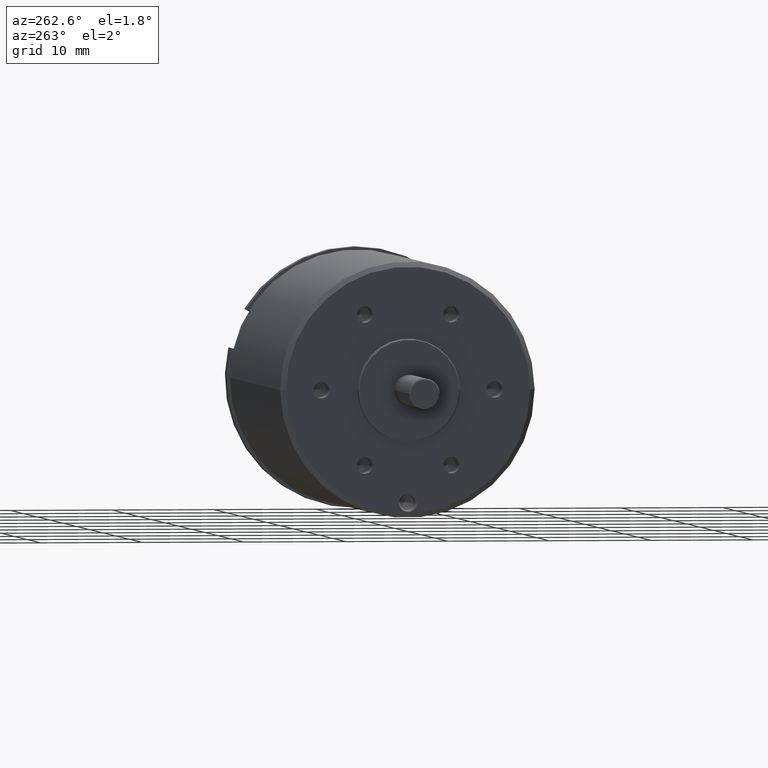
[diagram: clean part render]
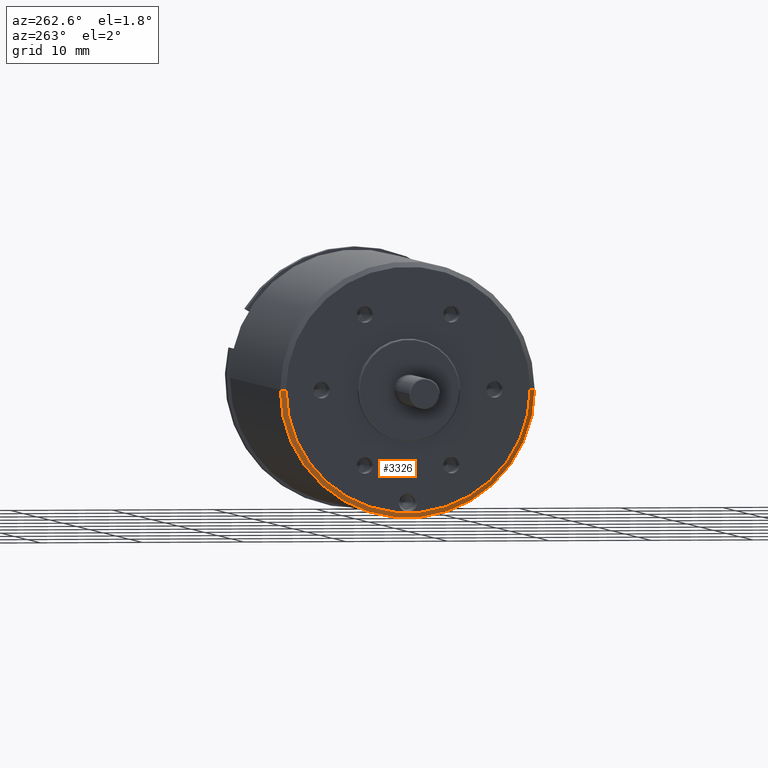
[diagram: same view with one face highlighted and labeled with its STEP entity id]
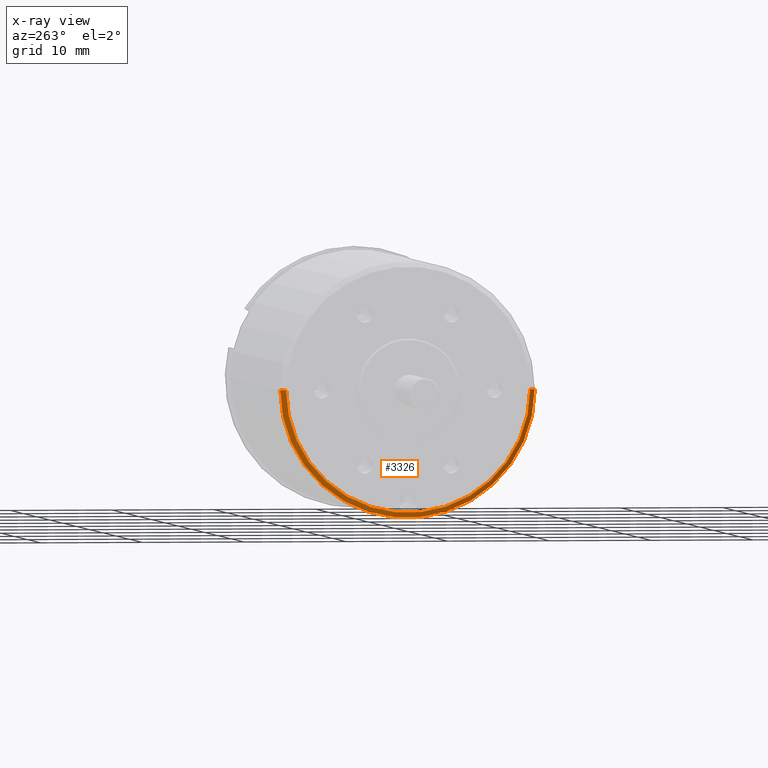
[diagram: x-ray of the same camera — body ghosted, the highlighted face saturated]
A machine part, auxiliary view. The second image highlights one B-rep face of the part: STEP entity #3326.
The next image is the same camera in x-ray: the body ghosted, the highlighted face saturated — about 0% of this face is hidden behind the body in this view.
In plain terms, the highlighted conical surface has half-angle 45 deg.
Its self-contained STEP definition (entity closure, byte-faithful):
#1=CARTESIAN_POINT('',(5.E-1,0.E0,0.E0));
#2=DIRECTION('',(-1.E0,0.E0,0.E0));
#3=DIRECTION('',(0.E0,1.E0,0.E0));
#4=AXIS2_PLACEMENT_3D('',#1,#2,#3);
#6=DIRECTION('',(-7.071067811865E-1,-7.071067811866E-1,0.E0));
#7=VECTOR('',#6,7.071067811866E-1);
#8=CARTESIAN_POINT('',(5.E-1,1.25E1,0.E0));
#9=LINE('',#8,#7);
#15=DIRECTION('',(-7.071067811865E-1,7.071067811866E-1,0.E0));
#16=VECTOR('',#15,7.071067811866E-1);
#17=CARTESIAN_POINT('',(5.E-1,-1.25E1,0.E0));
#18=LINE('',#17,#16);
#2204=CARTESIAN_POINT('',(0.E0,0.E0,0.E0));
#2205=DIRECTION('',(-1.E0,0.E0,0.E0));
#2206=DIRECTION('',(0.E0,1.E0,0.E0));
#2207=AXIS2_PLACEMENT_3D('',#2204,#2205,#2206);
#3095=CARTESIAN_POINT('',(5.E-1,1.25E1,0.E0));
#3096=CARTESIAN_POINT('',(0.E0,1.2E1,0.E0));
#3097=VERTEX_POINT('',#3095);
#3098=VERTEX_POINT('',#3096);
#3099=CARTESIAN_POINT('',(5.E-1,-1.25E1,0.E0));
#3100=CARTESIAN_POINT('',(0.E0,-1.2E1,0.E0));
#3101=VERTEX_POINT('',#3099);
#3102=VERTEX_POINT('',#3100);
#3311=CARTESIAN_POINT('',(2.5E-1,0.E0,0.E0));
#3312=DIRECTION('',(1.E0,0.E0,0.E0));
#3313=DIRECTION('',(0.E0,-1.E0,0.E0));
#3314=AXIS2_PLACEMENT_3D('',#3311,#3312,#3313);
#3315=CONICAL_SURFACE('',#3314,1.225E1,4.5E1);
#3317=ORIENTED_EDGE('',*,*,#3316,.T.);
#3319=ORIENTED_EDGE('',*,*,#3318,.T.);
#3321=ORIENTED_EDGE('',*,*,#3320,.F.);
#3323=ORIENTED_EDGE('',*,*,#3322,.F.);
#3324=EDGE_LOOP('',(#3317,#3319,#3321,#3323));
#3325=FACE_OUTER_BOUND('',#3324,.F.);
#3326=ADVANCED_FACE('',(#3325),#3315,.T.);
#5=CIRCLE('',#4,1.25E1);
#2208=CIRCLE('',#2207,1.2E1);
#3316=EDGE_CURVE('',#3097,#3098,#9,.T.);
#3318=EDGE_CURVE('',#3098,#3102,#2208,.T.);
#3320=EDGE_CURVE('',#3101,#3102,#18,.T.);
#3322=EDGE_CURVE('',#3097,#3101,#5,.T.);